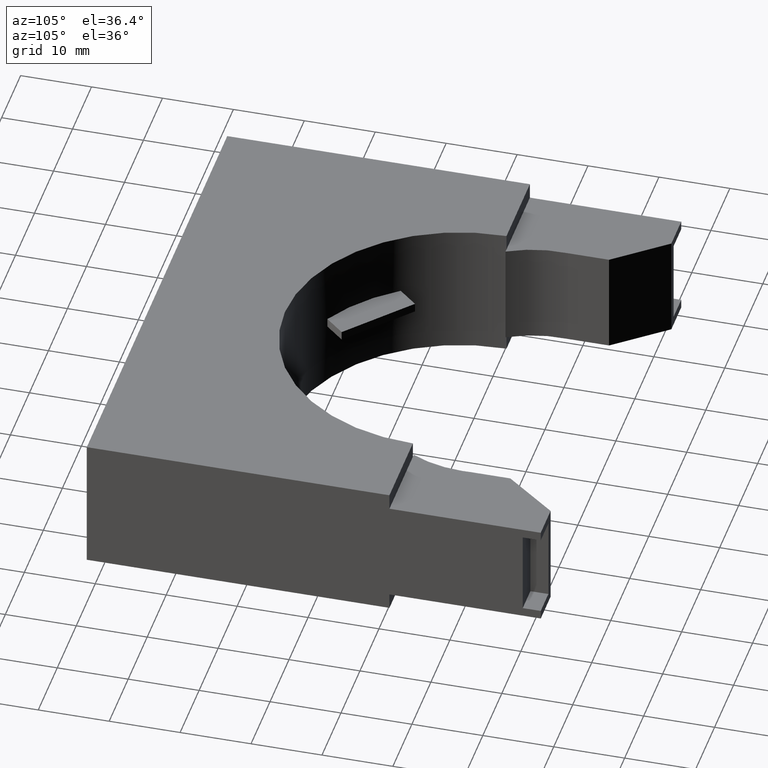
[diagram: clean part render]
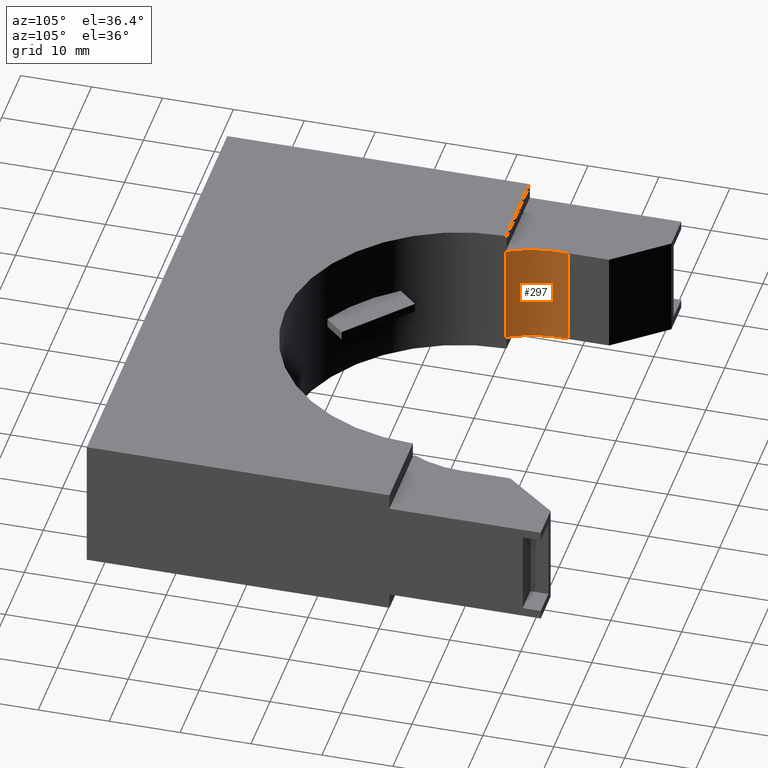
[diagram: same view with one face highlighted and labeled with its STEP entity id]
A machine part, auxiliary view. The second image highlights one B-rep face of the part: STEP entity #297.
In plain terms, the highlighted cylindrical surface (partial cylindrical patch) has radius 15.24 mm, axis along (-0, -0, 1).
Its self-contained STEP definition (entity closure, byte-faithful):
#260 = EDGE_CURVE ( 'NONE', #366, #261, #1131, .T. ) ;
#261 = VERTEX_POINT ( 'NONE', #1127 ) ;
#287 = ORIENTED_EDGE ( 'NONE', *, *, #288, .T. ) ;
#288 = EDGE_CURVE ( 'NONE', #363, #261, #996, .T. ) ;
#297 = ADVANCED_FACE ( 'NONE', ( #1012 ), #1011, .F. ) ;
#298 = EDGE_LOOP ( 'NONE', ( #337, #358, #361, #287 ) ) ;
#337 = ORIENTED_EDGE ( 'NONE', *, *, #260, .F. ) ;
#358 = ORIENTED_EDGE ( 'NONE', *, *, #359, .T. ) ;
#359 = EDGE_CURVE ( 'NONE', #366, #360, #1369, .T. ) ;
#360 = VERTEX_POINT ( 'NONE', #1365 ) ;
#361 = ORIENTED_EDGE ( 'NONE', *, *, #362, .T. ) ;
#362 = EDGE_CURVE ( 'NONE', #360, #363, #1364, .T. ) ;
#363 = VERTEX_POINT ( 'NONE', #1360 ) ;
#366 = VERTEX_POINT ( 'NONE', #1355 ) ;
#992 = DIRECTION ( 'NONE',  ( 1.821231995776175900E-015, 1.000000000000000000, 2.276539994720219800E-016 ) ) ;
#993 = DIRECTION ( 'NONE',  ( -0.0000000000000000000, -1.626099996228727100E-016, 1.000000000000000000 ) ) ;
#994 = CARTESIAN_POINT ( 'NONE',  ( -0.4239093913883427700, 0.7073969429209047100, 0.6604500000000003100 ) ) ;
#995 = AXIS2_PLACEMENT_3D ( 'NONE', #994, #993, #992 ) ;
#996 = CIRCLE ( 'NONE', #995, 0.5999999999999998700 ) ;
#1007 = DIRECTION ( 'NONE',  ( 1.000000000000000000, 0.0000000000000000000, 0.0000000000000000000 ) ) ;
#1008 = DIRECTION ( 'NONE',  ( -0.0000000000000000000, -0.0000000000000000000, 1.000000000000000000 ) ) ;
#1009 = CARTESIAN_POINT ( 'NONE',  ( -0.4239093913883427700, 0.7073969429209047100, 0.0000000000000000000 ) ) ;
#1010 = AXIS2_PLACEMENT_3D ( 'NONE', #1009, #1008, #1007 ) ;
#1011 = CYLINDRICAL_SURFACE ( 'NONE', #1010, 0.5999999999999998700 ) ;
#1012 = FACE_OUTER_BOUND ( 'NONE', #298, .T. ) ;
#1127 = CARTESIAN_POINT ( 'NONE',  ( -0.9506000000000000000, 0.4199999999999997600, 0.6604500000000003100 ) ) ;
#1128 = DIRECTION ( 'NONE',  ( -0.0000000000000000000, -0.0000000000000000000, 1.000000000000000000 ) ) ;
#1129 = VECTOR ( 'NONE', #1128, 39.37007874015748100 ) ;
#1130 = CARTESIAN_POINT ( 'NONE',  ( -0.9506000000000002200, 0.4199999999999998700, 0.0000000000000000000 ) ) ;
#1131 = LINE ( 'NONE', #1130, #1129 ) ;
#1355 = CARTESIAN_POINT ( 'NONE',  ( -0.9506000000000002200, 0.4199999999999998700, 0.08954999999999972700 ) ) ;
#1360 = CARTESIAN_POINT ( 'NONE',  ( -1.022578125000000100, 0.7473437500000000800, 0.6604500000000003100 ) ) ;
#1361 = DIRECTION ( 'NONE',  ( -0.0000000000000000000, -0.0000000000000000000, 1.000000000000000000 ) ) ;
#1362 = VECTOR ( 'NONE', #1361, 39.37007874015748100 ) ;
#1363 = CARTESIAN_POINT ( 'NONE',  ( -1.022578125000000100, 0.7473437500000000800, 0.0000000000000000000 ) ) ;
#1364 = LINE ( 'NONE', #1363, #1362 ) ;
#1365 = CARTESIAN_POINT ( 'NONE',  ( -1.022578125000000100, 0.7473437500000000800, 0.08954999999999976900 ) ) ;
#1366 = DIRECTION ( 'NONE',  ( 0.0000000000000000000, -1.000000000000000000, -1.138269997360109900E-016 ) ) ;
#1367 = DIRECTION ( 'NONE',  ( -0.0000000000000000000, 1.219574997171545800E-016, -1.000000000000000000 ) ) ;
#1368 = AXIS2_PLACEMENT_3D ( 'NONE', #1373, #1367, #1366 ) ;
#1369 = CIRCLE ( 'NONE', #1368, 0.5999999999999998700 ) ;
#1373 = CARTESIAN_POINT ( 'NONE',  ( -0.4239093913883427700, 0.7073969429209047100, 0.08954999999999976900 ) ) ;